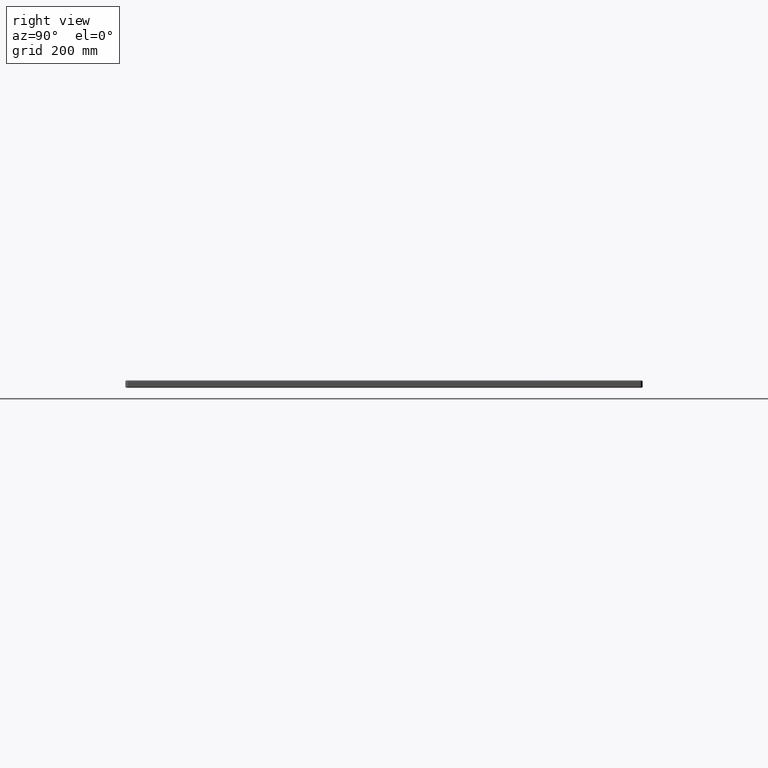
[diagram: clean part render]
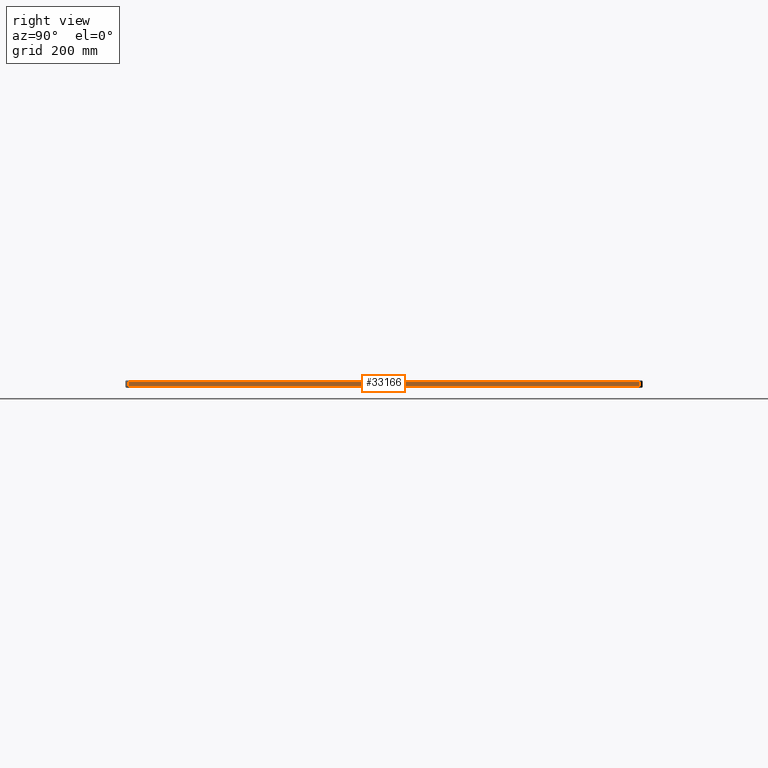
[diagram: same view with one face highlighted and labeled with its STEP entity id]
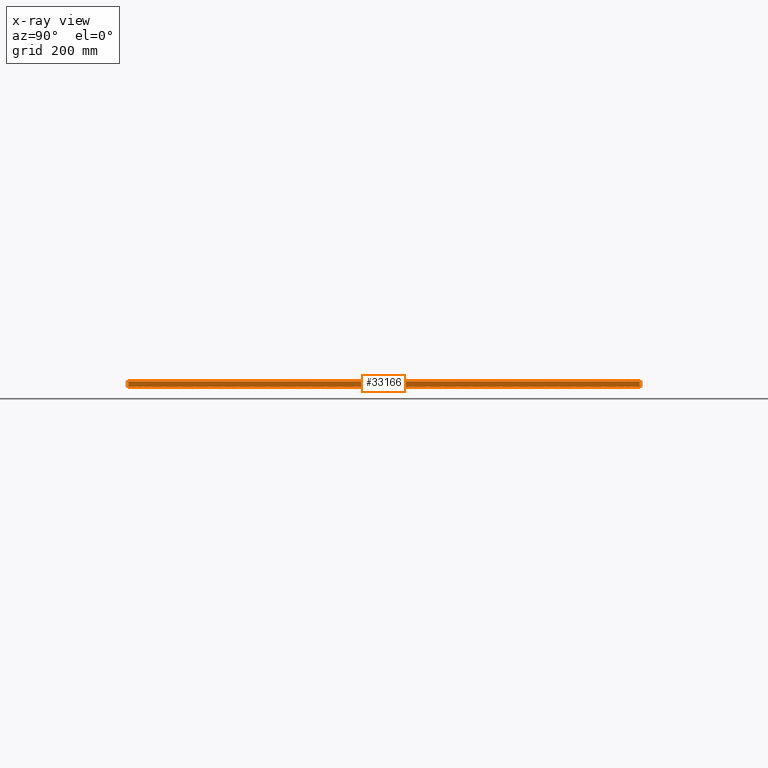
[diagram: x-ray of the same camera — body ghosted, the highlighted face saturated]
A machine part, right view. The second image highlights one B-rep face of the part: STEP entity #33166.
The next image is the same camera in x-ray: the body ghosted, the highlighted face saturated — about 0% of this face is hidden behind the body in this view.
In plain terms, the highlighted planar face has unit normal (1, 0, 0).
Its self-contained STEP definition (entity closure, byte-faithful):
#2207 = CARTESIAN_POINT ( 'NONE',  ( 900.0000000000000000, 0.0000000000000000000, -11.00000000000000000 ) ) ;
#3109 = EDGE_CURVE ( 'NONE', #83568, #8764, #60391, .T. ) ;
#4215 = VECTOR ( 'NONE', #57171, 1000.000000000000000 ) ;
#8764 = VERTEX_POINT ( 'NONE', #29911 ) ;
#11423 = DIRECTION ( 'NONE',  ( 1.000000000000000000, 0.0000000000000000000, 0.0000000000000000000 ) ) ;
#16268 = CARTESIAN_POINT ( 'NONE',  ( 900.0000000000000000, 895.0000000000000000, -13.00000000000000000 ) ) ;
#16825 = FACE_OUTER_BOUND ( 'NONE', #70955, .T. ) ;
#18156 = ORIENTED_EDGE ( 'NONE', *, *, #61677, .T. ) ;
#19471 = VECTOR ( 'NONE', #48036, 1000.000000000000000 ) ;
#19523 = VERTEX_POINT ( 'NONE', #37876 ) ;
#20507 = AXIS2_PLACEMENT_3D ( 'NONE', #54045, #11423, #68365 ) ;
#29911 = CARTESIAN_POINT ( 'NONE',  ( 900.0000000000000000, 895.0000000000000000, -2.000000000000000000 ) ) ;
#30892 = LINE ( 'NONE', #64023, #4215 ) ;
#32500 = VECTOR ( 'NONE', #91757, 1000.000000000000000 ) ;
#33166 = ADVANCED_FACE ( 'NONE', ( #16825 ), #46938, .T. ) ;
#35830 = ORIENTED_EDGE ( 'NONE', *, *, #87706, .T. ) ;
#37876 = CARTESIAN_POINT ( 'NONE',  ( 900.0000000000000000, 4.999999999999999100, -2.000000000000000000 ) ) ;
#45008 = ORIENTED_EDGE ( 'NONE', *, *, #3109, .T. ) ;
#46938 = PLANE ( 'NONE',  #20507 ) ;
#48036 = DIRECTION ( 'NONE',  ( -0.0000000000000000000, -1.000000000000000000, 0.0000000000000000000 ) ) ;
#48411 = LINE ( 'NONE', #84635, #19471 ) ;
#52107 = LINE ( 'NONE', #2207, #75442 ) ;
#54045 = CARTESIAN_POINT ( 'NONE',  ( 900.0000000000000000, 0.0000000000000000000, -13.00000000000000000 ) ) ;
#55354 = VERTEX_POINT ( 'NONE', #59079 ) ;
#57171 = DIRECTION ( 'NONE',  ( 0.0000000000000000000, -0.0000000000000000000, -1.000000000000000000 ) ) ;
#59079 = CARTESIAN_POINT ( 'NONE',  ( 900.0000000000000000, 4.999999999999999100, -11.00000000000000000 ) ) ;
#60391 = LINE ( 'NONE', #16268, #32500 ) ;
#61677 = EDGE_CURVE ( 'NONE', #19523, #55354, #30892, .T. ) ;
#62360 = CARTESIAN_POINT ( 'NONE',  ( 900.0000000000000000, 895.0000000000000000, -11.00000000000000000 ) ) ;
#64023 = CARTESIAN_POINT ( 'NONE',  ( 900.0000000000000000, 4.999999999999999100, -13.00000000000000000 ) ) ;
#65935 = EDGE_CURVE ( 'NONE', #55354, #83568, #52107, .T. ) ;
#68365 = DIRECTION ( 'NONE',  ( 0.0000000000000000000, 0.0000000000000000000, -1.000000000000000000 ) ) ;
#70955 = EDGE_LOOP ( 'NONE', ( #18156, #92308, #45008, #35830 ) ) ;
#75442 = VECTOR ( 'NONE', #80830, 1000.000000000000000 ) ;
#80830 = DIRECTION ( 'NONE',  ( -0.0000000000000000000, 1.000000000000000000, 0.0000000000000000000 ) ) ;
#83568 = VERTEX_POINT ( 'NONE', #62360 ) ;
#84635 = CARTESIAN_POINT ( 'NONE',  ( 900.0000000000000000, 5.000000000000004400, -2.000000000000000000 ) ) ;
#87706 = EDGE_CURVE ( 'NONE', #8764, #19523, #48411, .T. ) ;
#91757 = DIRECTION ( 'NONE',  ( 0.0000000000000000000, 0.0000000000000000000, 1.000000000000000000 ) ) ;
#92308 = ORIENTED_EDGE ( 'NONE', *, *, #65935, .T. ) ;